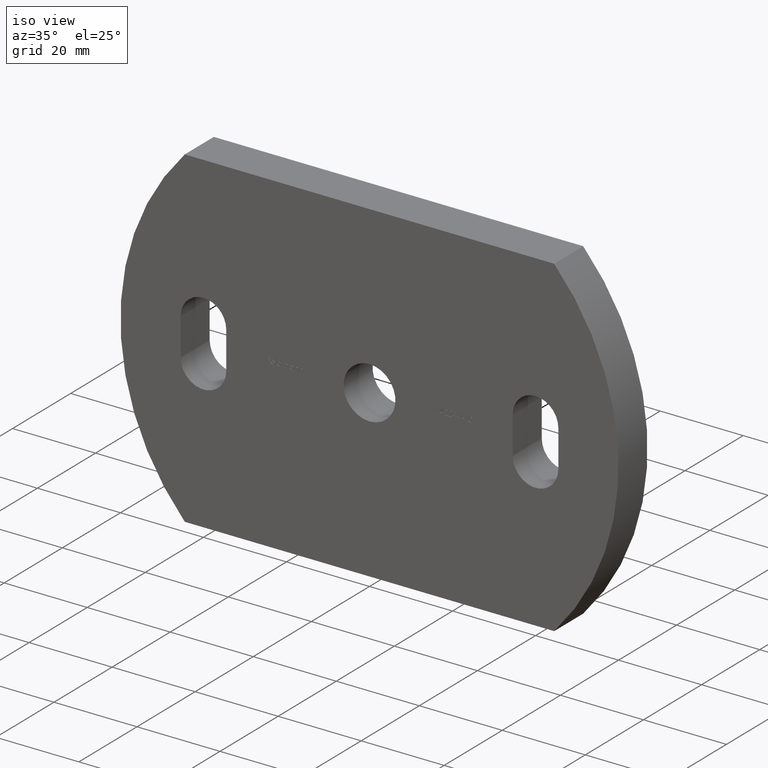
[diagram: clean part render]
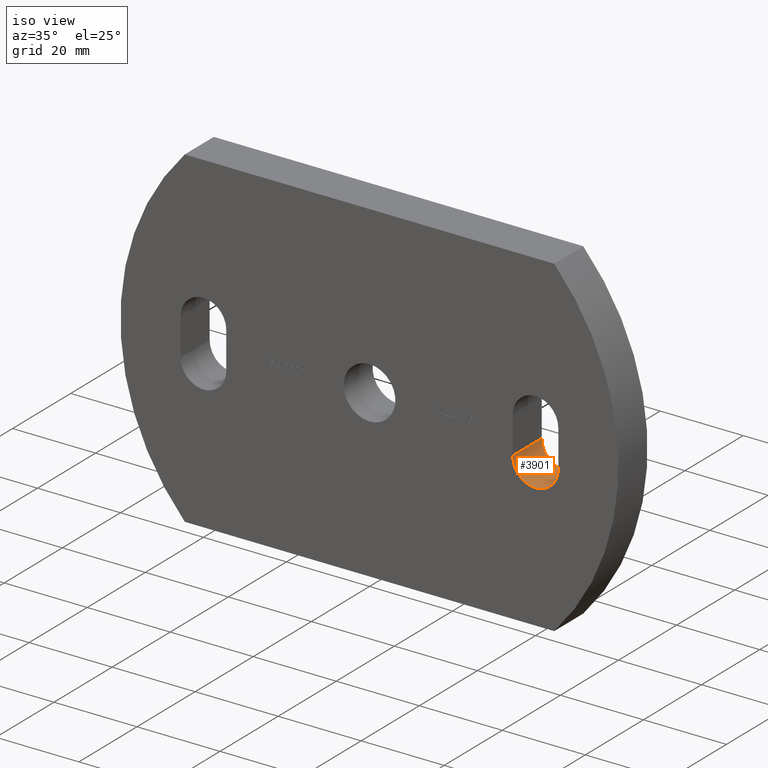
[diagram: same view with one face highlighted and labeled with its STEP entity id]
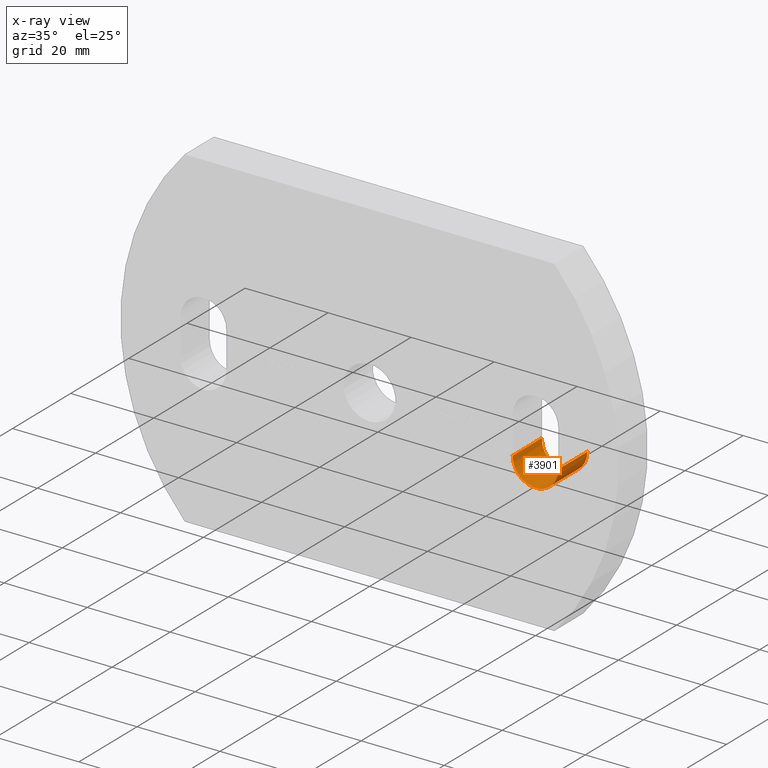
[diagram: x-ray of the same camera — body ghosted, the highlighted face saturated]
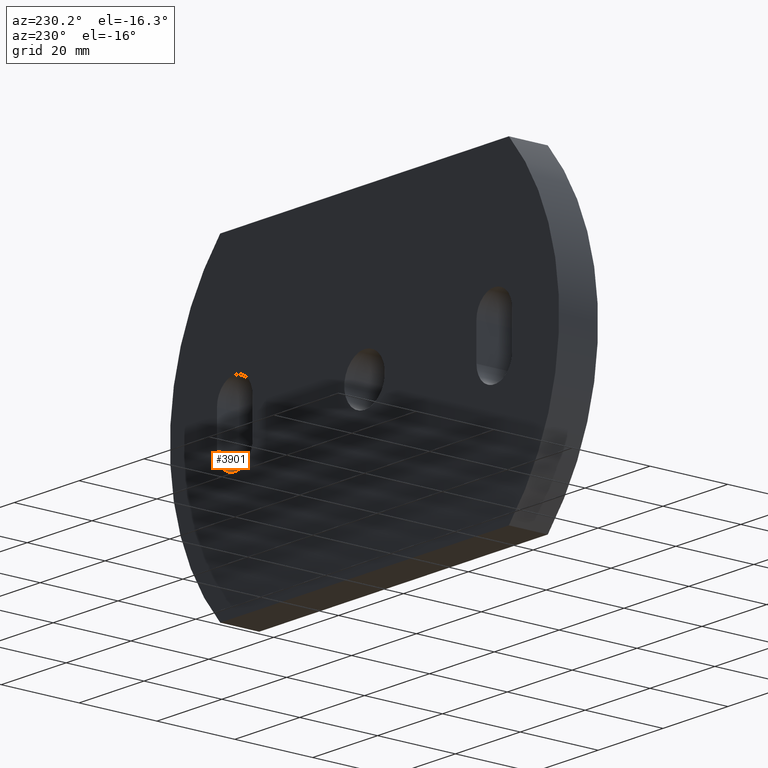
[diagram: same view with one face highlighted and labeled with its STEP entity id]
A machine part, iso view. The second image highlights one B-rep face of the part: STEP entity #3901.
The next image is the same camera in x-ray: the body ghosted, the highlighted face saturated — about 0% of this face is hidden behind the body in this view.
A second angle (auxiliary view) of the same face is appended — the face is thin or edge-on in the first view.
In plain terms, the highlighted cylindrical surface (edge-blend (fillet) strip) has radius 5.5 mm, axis along (-0, 1, -0).
Its self-contained STEP definition (entity closure, byte-faithful):
#473 = CARTESIAN_POINT ( 'NONE',  ( 40.00000000000000000, 0.0000000000000000000, -4.499999999999992900 ) ) ;
#598 = DIRECTION ( 'NONE',  ( 0.0000000000000000000, 0.0000000000000000000, 1.000000000000000000 ) ) ;
#633 = DIRECTION ( 'NONE',  ( -0.0000000000000000000, 1.000000000000000000, -0.0000000000000000000 ) ) ;
#766 = CARTESIAN_POINT ( 'NONE',  ( 40.00000000000000000, 10.00000000000000000, -4.499999999999992900 ) ) ;
#822 = LINE ( 'NONE', #4048, #10544 ) ;
#1164 = DIRECTION ( 'NONE',  ( -0.0000000000000000000, 1.000000000000000000, -0.0000000000000000000 ) ) ;
#1380 = DIRECTION ( 'NONE',  ( 0.0000000000000000000, 1.000000000000000000, 0.0000000000000000000 ) ) ;
#1716 = VERTEX_POINT ( 'NONE', #7018 ) ;
#2247 = ORIENTED_EDGE ( 'NONE', *, *, #5170, .T. ) ;
#2394 = ORIENTED_EDGE ( 'NONE', *, *, #10046, .F. ) ;
#3053 = EDGE_CURVE ( 'NONE', #9265, #1716, #10206, .T. ) ;
#3457 = AXIS2_PLACEMENT_3D ( 'NONE', #473, #1164, #6903 ) ;
#3544 = EDGE_CURVE ( 'NONE', #5024, #6417, #5054, .T. ) ;
#3551 = FACE_OUTER_BOUND ( 'NONE', #9183, .T. ) ;
#3901 = ADVANCED_FACE ( 'NONE', ( #3551 ), #7353, .F. ) ;
#4048 = CARTESIAN_POINT ( 'NONE',  ( 45.50000000000000000, 0.0000000000000000000, -4.500000000000005300 ) ) ;
#4086 = CARTESIAN_POINT ( 'NONE',  ( 34.50000000000000000, 10.00000000000000000, -4.500000000000003600 ) ) ;
#4886 = AXIS2_PLACEMENT_3D ( 'NONE', #766, #8891, #9718 ) ;
#5024 = VERTEX_POINT ( 'NONE', #7179 ) ;
#5054 = CIRCLE ( 'NONE', #4886, 5.499999999999998200 ) ;
#5170 = EDGE_CURVE ( 'NONE', #9265, #5024, #822, .T. ) ;
#5497 = VECTOR ( 'NONE', #633, 1000.000000000000000 ) ;
#6005 = CARTESIAN_POINT ( 'NONE',  ( 45.50000000000000000, 0.0000000000000000000, -4.500000000000005300 ) ) ;
#6277 = LINE ( 'NONE', #6442, #5497 ) ;
#6335 = CARTESIAN_POINT ( 'NONE',  ( 40.00000000000000000, 0.0000000000000000000, -4.499999999999992900 ) ) ;
#6336 = ORIENTED_EDGE ( 'NONE', *, *, #3053, .F. ) ;
#6372 = DIRECTION ( 'NONE',  ( -0.0000000000000000000, 1.000000000000000000, -0.0000000000000000000 ) ) ;
#6417 = VERTEX_POINT ( 'NONE', #4086 ) ;
#6442 = CARTESIAN_POINT ( 'NONE',  ( 34.50000000000000000, 0.0000000000000000000, -4.500000000000003600 ) ) ;
#6616 = AXIS2_PLACEMENT_3D ( 'NONE', #6335, #1380, #598 ) ;
#6903 = DIRECTION ( 'NONE',  ( 0.0000000000000000000, 0.0000000000000000000, 1.000000000000000000 ) ) ;
#7018 = CARTESIAN_POINT ( 'NONE',  ( 34.50000000000000000, 0.0000000000000000000, -4.500000000000003600 ) ) ;
#7179 = CARTESIAN_POINT ( 'NONE',  ( 45.50000000000000000, 10.00000000000000000, -4.500000000000005300 ) ) ;
#7353 = CYLINDRICAL_SURFACE ( 'NONE', #3457, 5.499999999999998200 ) ;
#7829 = ORIENTED_EDGE ( 'NONE', *, *, #3544, .T. ) ;
#8891 = DIRECTION ( 'NONE',  ( 0.0000000000000000000, 1.000000000000000000, 0.0000000000000000000 ) ) ;
#9183 = EDGE_LOOP ( 'NONE', ( #7829, #2394, #6336, #2247 ) ) ;
#9265 = VERTEX_POINT ( 'NONE', #6005 ) ;
#9718 = DIRECTION ( 'NONE',  ( 0.0000000000000000000, 0.0000000000000000000, 1.000000000000000000 ) ) ;
#10046 = EDGE_CURVE ( 'NONE', #1716, #6417, #6277, .T. ) ;
#10206 = CIRCLE ( 'NONE', #6616, 5.499999999999998200 ) ;
#10544 = VECTOR ( 'NONE', #6372, 1000.000000000000000 ) ;